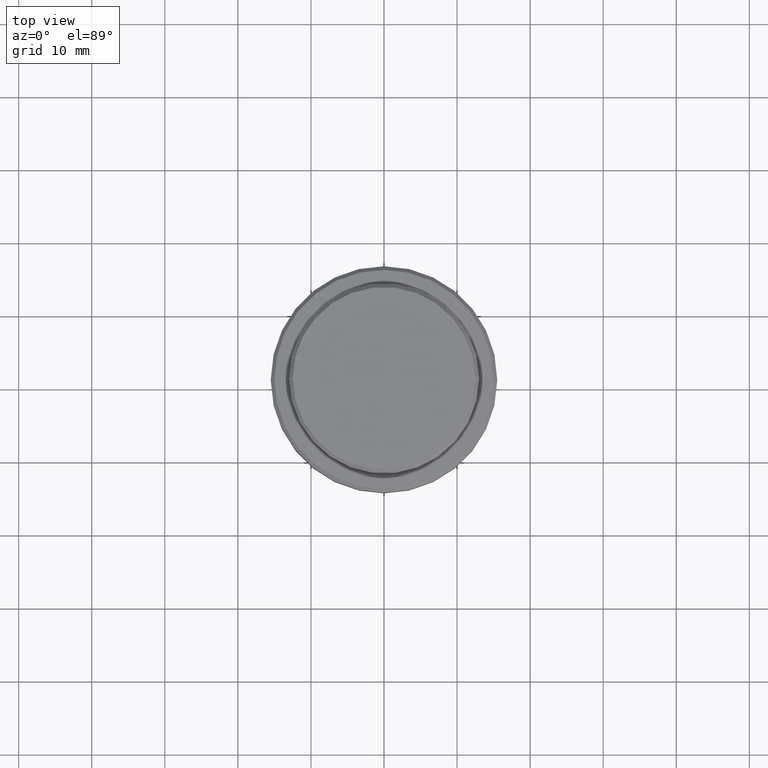
[diagram: clean part render]
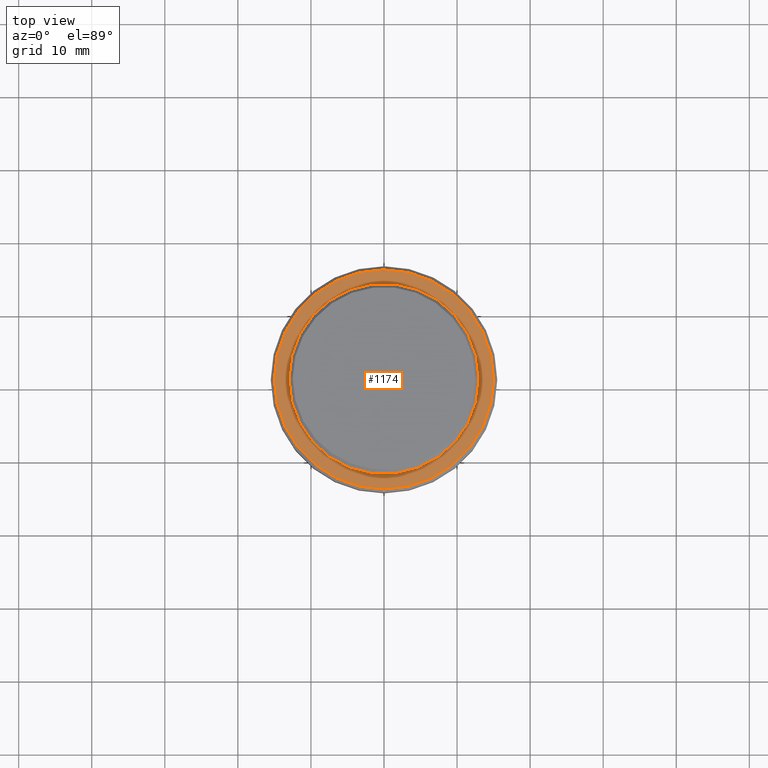
[diagram: same view with one face highlighted and labeled with its STEP entity id]
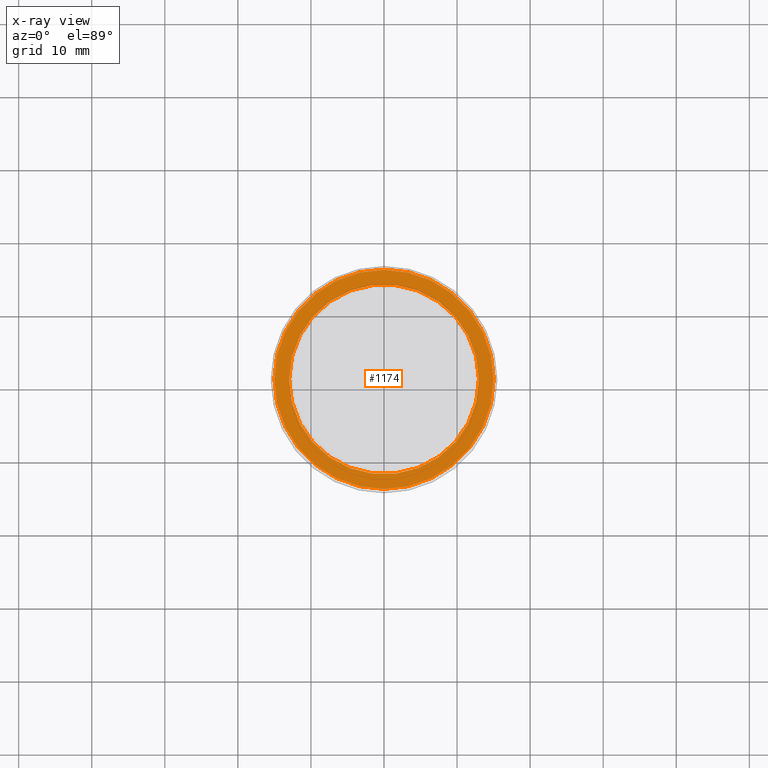
[diagram: x-ray of the same camera — body ghosted, the highlighted face saturated]
A machine part, top view. The second image highlights one B-rep face of the part: STEP entity #1174.
The next image is the same camera in x-ray: the body ghosted, the highlighted face saturated — about 0% of this face is hidden behind the body in this view.
In plain terms, the highlighted planar face has unit normal (0, -0, 1).
Its self-contained STEP definition (entity closure, byte-faithful):
#2 = VERTEX_POINT ( 'NONE', #406 ) ;
#37 = VERTEX_POINT ( 'NONE', #964 ) ;
#63 = CARTESIAN_POINT ( 'NONE',  ( 0.000000000000000000, 0.000000000000000000, -9.000000000000000000 ) ) ;
#76 = EDGE_CURVE ( 'NONE', #488, #563, #1321, .T. ) ;
#127 = DIRECTION ( 'NONE',  ( 1.000000000000000000, 0.000000000000000000, 0.000000000000000000 ) ) ;
#172 = DIRECTION ( 'NONE',  ( -0.000000000000000000, -0.000000000000000000, 1.000000000000000000 ) ) ;
#186 = AXIS2_PLACEMENT_3D ( 'NONE', #854, #1297, #127 ) ;
#197 = DIRECTION ( 'NONE',  ( 1.000000000000000000, 0.000000000000000000, 0.000000000000000000 ) ) ;
#202 = PLANE ( 'NONE',  #186 ) ;
#256 = CARTESIAN_POINT ( 'NONE',  ( 0.000000000000000000, 0.000000000000000000, -9.000000000000000000 ) ) ;
#313 = DIRECTION ( 'NONE',  ( 1.000000000000000000, 0.000000000000000000, 0.000000000000000000 ) ) ;
#318 = AXIS2_PLACEMENT_3D ( 'NONE', #972, #1407, #313 ) ;
#374 = ORIENTED_EDGE ( 'NONE', *, *, #1179, .T. ) ;
#382 = CARTESIAN_POINT ( 'NONE',  ( 0.000000000000000000, 0.000000000000000000, -9.000000000000000000 ) ) ;
#406 = CARTESIAN_POINT ( 'NONE',  ( -12.99999999999999467, 1.592040838891558504E-15, -9.000000000000000000 ) ) ;
#488 = VERTEX_POINT ( 'NONE', #1060 ) ;
#493 = ORIENTED_EDGE ( 'NONE', *, *, #76, .T. ) ;
#534 = EDGE_LOOP ( 'NONE', ( #493, #1185 ) ) ;
#541 = CIRCLE ( 'NONE', #1122, 12.99999999999999467 ) ;
#563 = VERTEX_POINT ( 'NONE', #1213 ) ;
#680 = DIRECTION ( 'NONE',  ( 0.000000000000000000, 0.000000000000000000, -1.000000000000000000 ) ) ;
#752 = CIRCLE ( 'NONE', #1144, 12.99999999999999467 ) ;
#762 = FACE_OUTER_BOUND ( 'NONE', #534, .T. ) ;
#767 = EDGE_LOOP ( 'NONE', ( #936, #374 ) ) ;
#806 = DIRECTION ( 'NONE',  ( 1.000000000000000000, 0.000000000000000000, 0.000000000000000000 ) ) ;
#826 = EDGE_CURVE ( 'NONE', #37, #2, #541, .T. ) ;
#854 = CARTESIAN_POINT ( 'NONE',  ( 0.000000000000000000, 12.49999999999999289, -9.000000000000000000 ) ) ;
#936 = ORIENTED_EDGE ( 'NONE', *, *, #826, .T. ) ;
#945 = EDGE_CURVE ( 'NONE', #563, #488, #1214, .T. ) ;
#964 = CARTESIAN_POINT ( 'NONE',  ( 12.99999999999999467, 0.000000000000000000, -9.000000000000000000 ) ) ;
#972 = CARTESIAN_POINT ( 'NONE',  ( 0.000000000000000000, 0.000000000000000000, -9.000000000000000000 ) ) ;
#1029 = DIRECTION ( 'NONE',  ( 1.000000000000000000, 0.000000000000000000, 0.000000000000000000 ) ) ;
#1060 = CARTESIAN_POINT ( 'NONE',  ( -14.99999999999998579, 0.000000000000000000, -9.000000000000000000 ) ) ;
#1122 = AXIS2_PLACEMENT_3D ( 'NONE', #382, #1221, #806 ) ;
#1144 = AXIS2_PLACEMENT_3D ( 'NONE', #256, #680, #1029 ) ;
#1174 = ADVANCED_FACE ( 'NONE', ( #762, #1202 ), #202, .T. ) ;
#1179 = EDGE_CURVE ( 'NONE', #2, #37, #752, .T. ) ;
#1185 = ORIENTED_EDGE ( 'NONE', *, *, #945, .T. ) ;
#1202 = FACE_BOUND ( 'NONE', #767, .T. ) ;
#1213 = CARTESIAN_POINT ( 'NONE',  ( 14.99999999999998579, 1.867586368699712587E-15, -9.000000000000000000 ) ) ;
#1214 = CIRCLE ( 'NONE', #1390, 14.99999999999998579 ) ;
#1221 = DIRECTION ( 'NONE',  ( 0.000000000000000000, 0.000000000000000000, -1.000000000000000000 ) ) ;
#1297 = DIRECTION ( 'NONE',  ( 0.000000000000000000, -0.000000000000000000, 1.000000000000000000 ) ) ;
#1321 = CIRCLE ( 'NONE', #318, 14.99999999999998579 ) ;
#1390 = AXIS2_PLACEMENT_3D ( 'NONE', #63, #172, #197 ) ;
#1407 = DIRECTION ( 'NONE',  ( -0.000000000000000000, -0.000000000000000000, 1.000000000000000000 ) ) ;